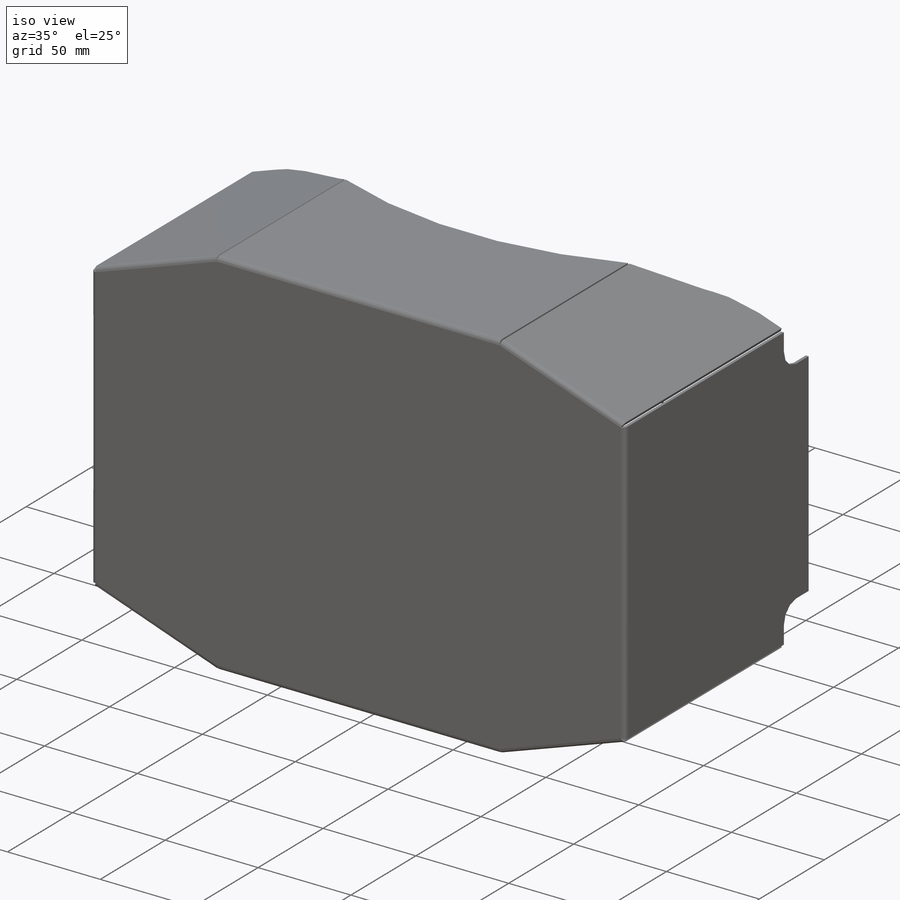
[diagram: iso view]
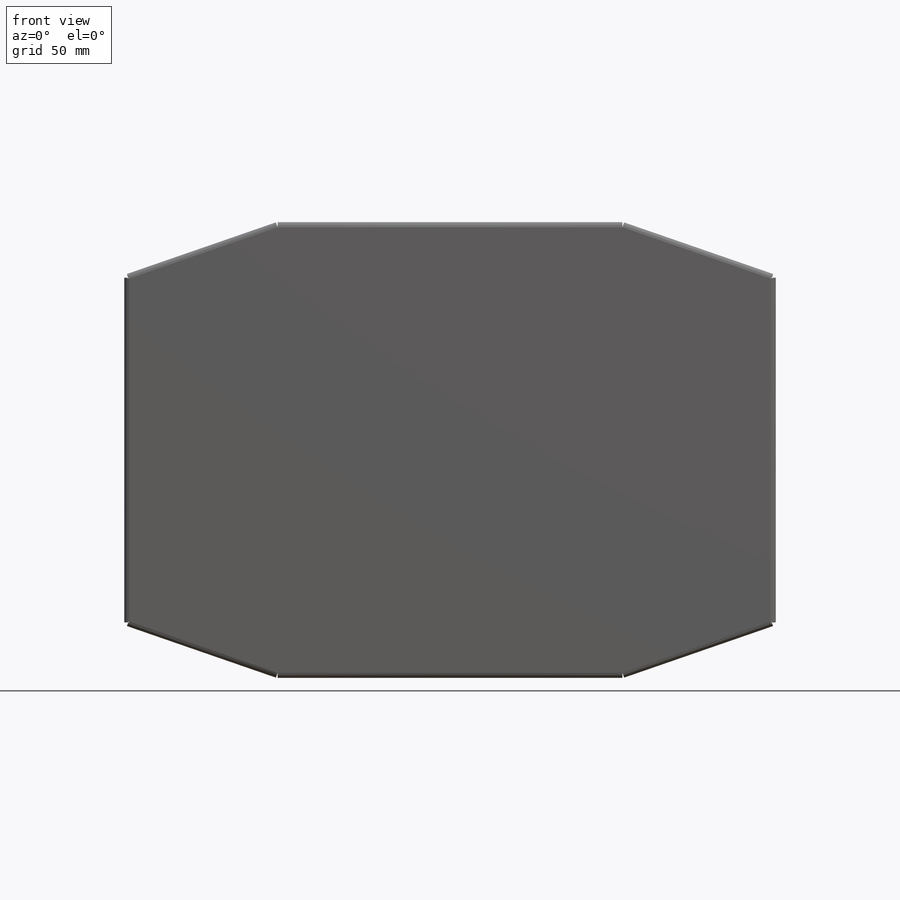
[diagram: front view]
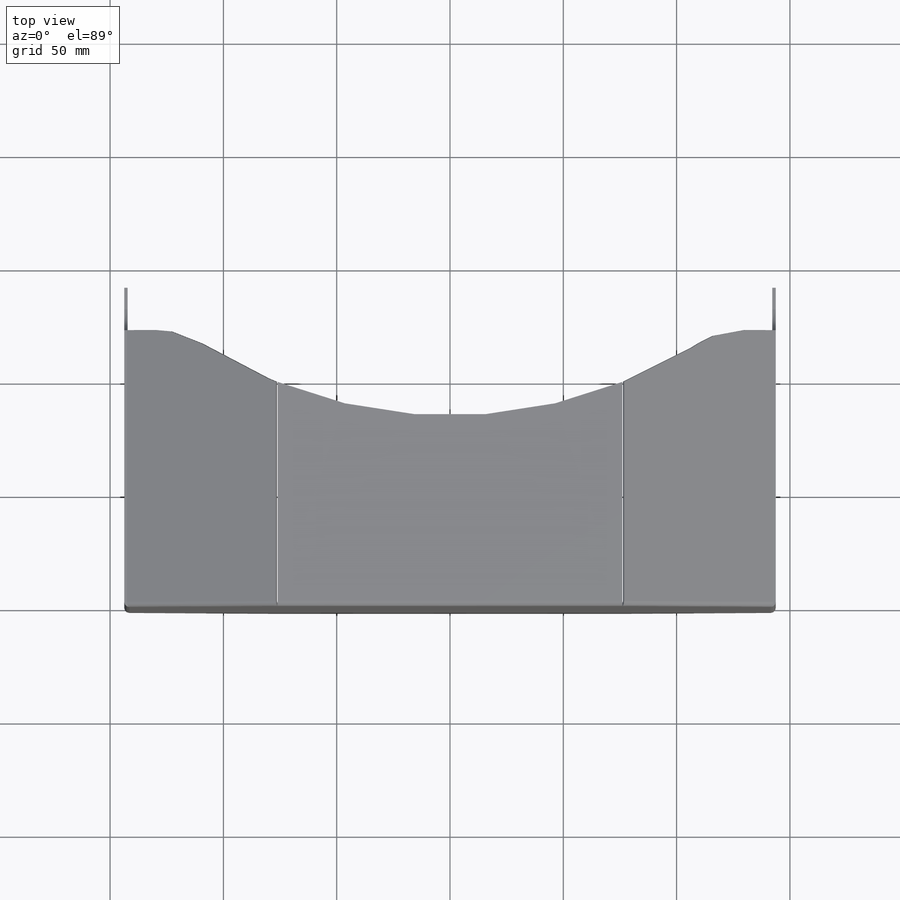
[diagram: top view]
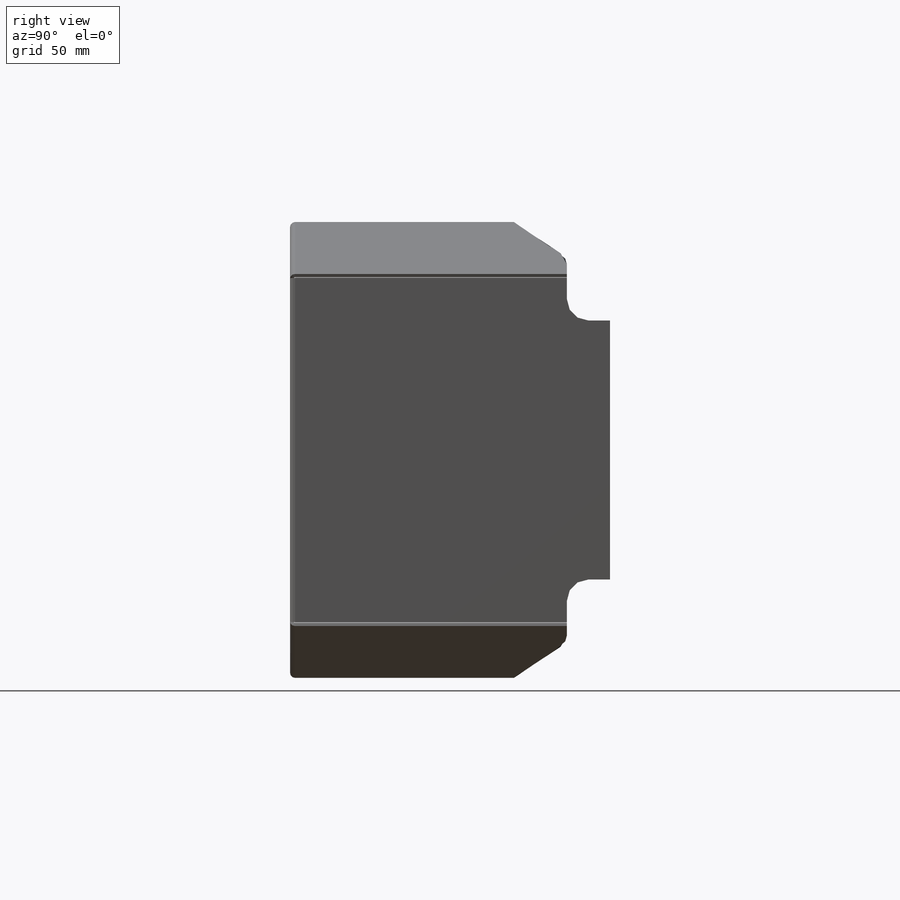
[diagram: right view]
SOLIDWORKS PART (.sldprt)
format: sldprt  version: not decoded by parser v0  size: 829,952 bytes
history: native  units: mm
features: sketch x13, sheet_metal_op x9, plane x4, cut_extrude x3, material x1 + 8 further entries (+14 scaffold rows collapsed; 1 parser-record rows omitted)
feature tree (53):
  scaffold x14  (default folders/planes/origin — collapsed)
  material  "Material <not specified>"
  sketch  "Sketch1"
  sheet_metal_op  "Sheet-Metal1"  Thickness=1.524mm
  sheet_metal_op  "Base-Flange1"
  plane  "Plane1"
  sketch  "Sketch8"  dims[c1.D1=139.7mm c1.D2=139.7mm c2.D1=0.7366mm c2.D4=90.0deg c2.D5=1.0 c2.D8=0.762mm c2.D9=0.762mm c3.D1=0.7366mm c3.D2=500.0mm c3.D3=0.0mm c4.D2=0.0mm c4.D3=0.0mm]
  plane  "Plane2"
  sketch  "Sketch11"  dims[D1=139.7mm Miter Flange2=0.0]
  sheet_metal_op  "Miterbend9"
  plane  "Plane3"
  sketch  "Sketch12"  dims[D1=139.7mm Miter Flange3=0.0]
  sheet_metal_op  "Miterbend10"
  plane  "Plane4"
  sketch  "Sketch13"  dims[D1=139.7mm Miter Flange4=0.0]
  sheet_metal_op  "Miterbend11"
  sketch  "Sketch14"  dims[D1=0.254mm Miter Flange9=0.0]
  sheet_metal_op  "Miterbend16"
  sketch  "Sketch15"  dims[D1=0.254mm Miter Flange10=0.0]
  sheet_metal_op  "Miterbend17"
  sketch  "Sketch16"  dims[D1=0.254mm Miter Flange11=0.0]
  sheet_metal_op  "Miterbend18"
  sketch  "Sketch17"  dims[D1=0.254mm Miter Flange12=0.0]
  sheet_metal_op  "Miterbend19"
  sketch  "Sketch9"  dims[D3=9.525mm D1=114.3mm D2=19.05mm D4=203.2mm]
  cut_extrude  "Cut-Extrude1"  [1 undecoded]
  sketch  "Sketch10"  dims[c1.D3=38.1mm c1.D1=38.1mm c1.D2=12.7mm c1.D4=12.7mm c2.D2=12.7mm]
  cut_extrude  "Cut-Extrude4"  [1 undecoded]
  sketch  "Sketch18"  dims[D2=6.35mm D1=9.525mm D3=12.7mm]
  cut_extrude  "Cut-Extrude5"  [1 undecoded]
  "Flat-Pattern1"
  sketch  "Bend-Lines1"
  "Flatten-<Miterbend9>1"
  "Flatten-<Miterbend10>1"
  "Flatten-<Miterbend11>1"
  "Flatten-<Miterbend16>1"
  "Flatten-<Miterbend17>1"
  "Flatten-<Miterbend18>1"
  "Flatten-<Miterbend19>1"
  parser-record x1  (decoder bookkeeping rows leaked as tree rows — omitted from the tree; the rows remain in map.json)
decode coverage: 12 of 25 modeling features carry decoded parameters; 8 rows unclassified (native names shown)
note: 3 parameter values undecoded
summary: no parameter record found for 3 features
note: suppression state not decoded; provenance and decode notes live in map.json
